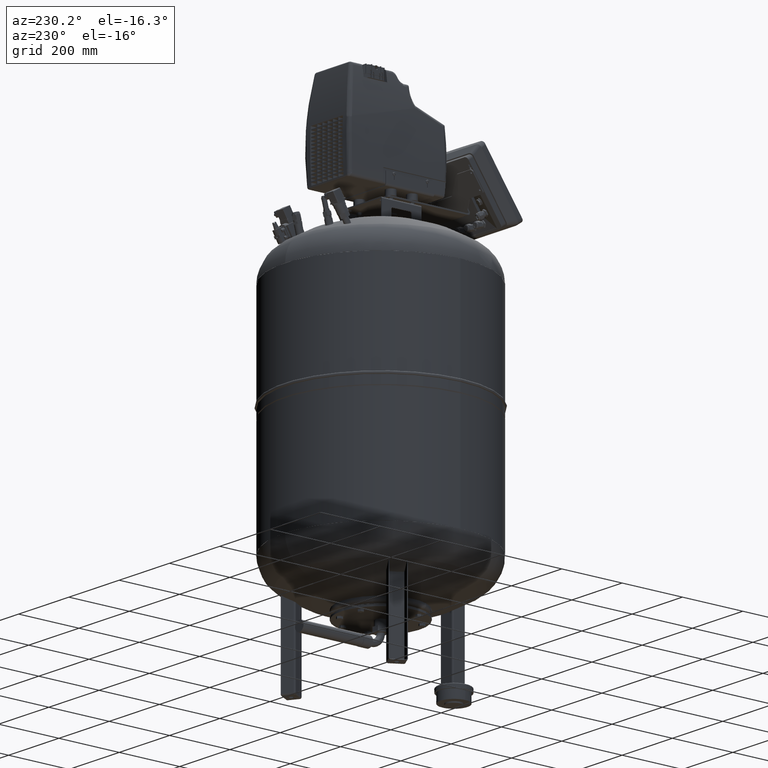
[diagram: clean part render]
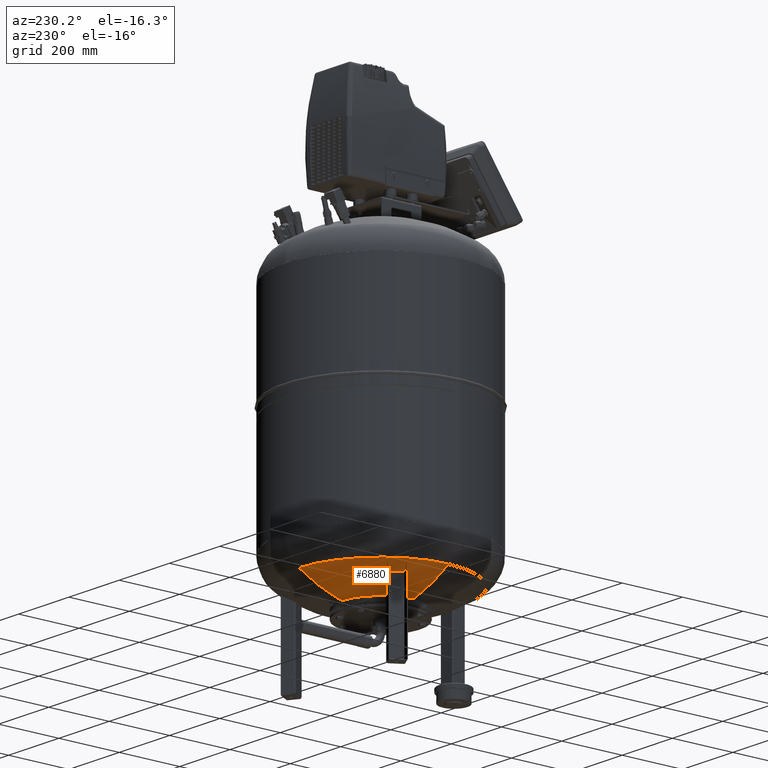
[diagram: same view with one face highlighted and labeled with its STEP entity id]
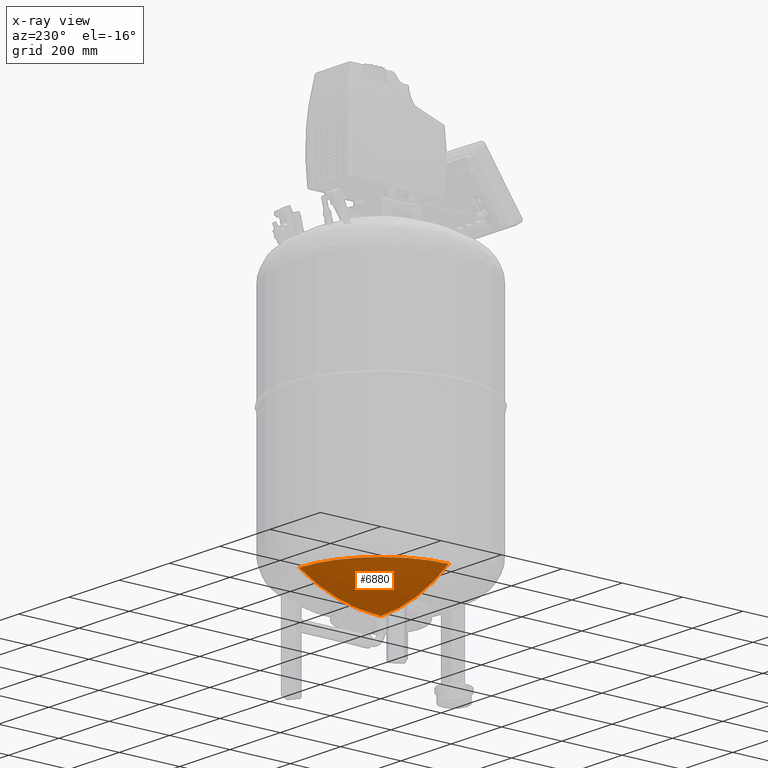
[diagram: x-ray of the same camera — body ghosted, the highlighted face saturated]
A machine part, auxiliary view. The second image highlights one B-rep face of the part: STEP entity #6880.
The next image is the same camera in x-ray: the body ghosted, the highlighted face saturated — about 0% of this face is hidden behind the body in this view.
In plain terms, the highlighted spherical surface has radius 509 mm.
Its self-contained STEP definition (entity closure, byte-faithful):
#6807=AXIS2_PLACEMENT_3D('Circle Axis2P3D',#6805,#6806,$) ;
#6856=AXIS2_PLACEMENT_3D('Circle Axis2P3D',#6854,#6855,$) ;
#6868=AXIS2_PLACEMENT_3D('Sphere Axis2P3D',#6865,#6866,#6867) ;
#6872=AXIS2_PLACEMENT_3D('Circle Axis2P3D',#6870,#6871,$) ;
#6783=CARTESIAN_POINT('Vertex',(4.12095476142E-014,270.63902439,268.913560319)) ;
#6805=CARTESIAN_POINT('Axis2P3D Location',(8.06582611976E-015,-1.43124917185E-014,268.913560319)) ;
#6809=CARTESIAN_POINT('Vertex',(-270.63902439,2.75778831515E-013,268.913560319)) ;
#6835=CARTESIAN_POINT('Vertex',(-1.87211571315E-014,-9.350178E-014,191.)) ;
#6854=CARTESIAN_POINT('Axis2P3D Location',(-1.005746E-013,-9.350178E-014,700.)) ;
#6865=CARTESIAN_POINT('Axis2P3D Location',(-1.005746E-013,-9.350178E-014,700.)) ;
#6870=CARTESIAN_POINT('Axis2P3D Location',(-1.005746E-013,-9.350178E-014,700.)) ;
#6806=DIRECTION('Axis2P3D Direction',(-9.619823E-017,0.,1.)) ;
#6855=DIRECTION('Axis2P3D Direction',(1.,-6.12323399574E-017,0.)) ;
#6866=DIRECTION('Axis2P3D Direction',(0.,0.,1.)) ;
#6867=DIRECTION('Axis2P3D XDirection',(6.12323399574E-017,1.,0.)) ;
#6871=DIRECTION('Axis2P3D Direction',(1.22464679915E-016,1.,-0.)) ;
#6876=ORIENTED_EDGE('',*,*,#6858,.F.) ;
#6877=ORIENTED_EDGE('',*,*,#6874,.F.) ;
#6878=ORIENTED_EDGE('',*,*,#6811,.F.) ;
#6880=ADVANCED_FACE('312',(#6879),#6869,.T.) ;
#6808=CIRCLE('generated circle',#6807,270.63902439) ;
#6857=CIRCLE('generated circle',#6856,509.) ;
#6873=CIRCLE('generated circle',#6872,509.) ;
#6811=EDGE_CURVE('',#6784,#6810,#6808,.T.) ;
#6858=EDGE_CURVE('',#6836,#6784,#6857,.T.) ;
#6874=EDGE_CURVE('',#6810,#6836,#6873,.F.) ;
#6875=EDGE_LOOP('',(#6876,#6877,#6878)) ;
#6879=FACE_OUTER_BOUND('',#6875,.T.) ;
#6869=SPHERICAL_SURFACE('',#6868,509.) ;
#6784=VERTEX_POINT('',#6783) ;
#6810=VERTEX_POINT('',#6809) ;
#6836=VERTEX_POINT('',#6835) ;